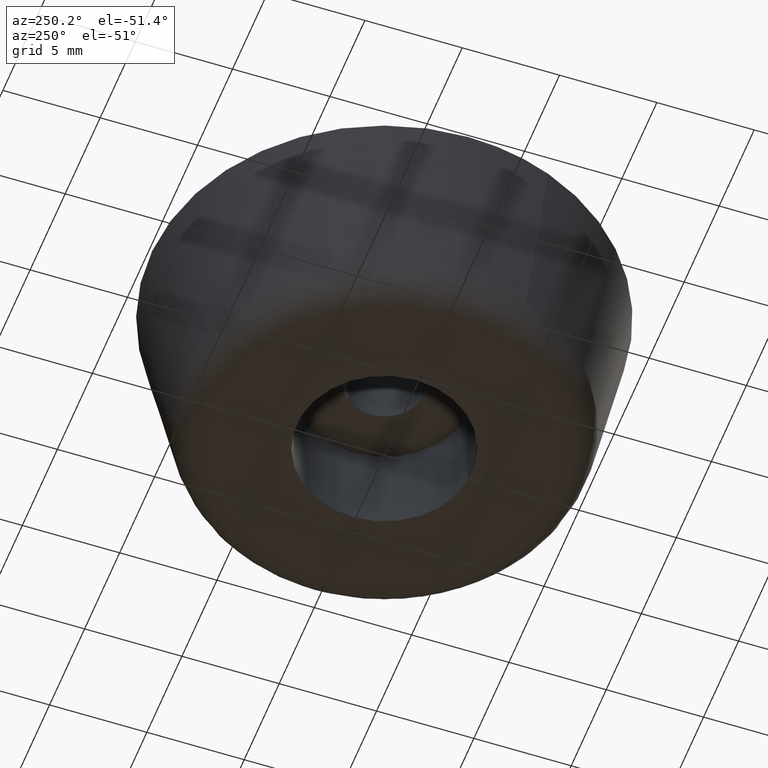
[diagram: clean part render]
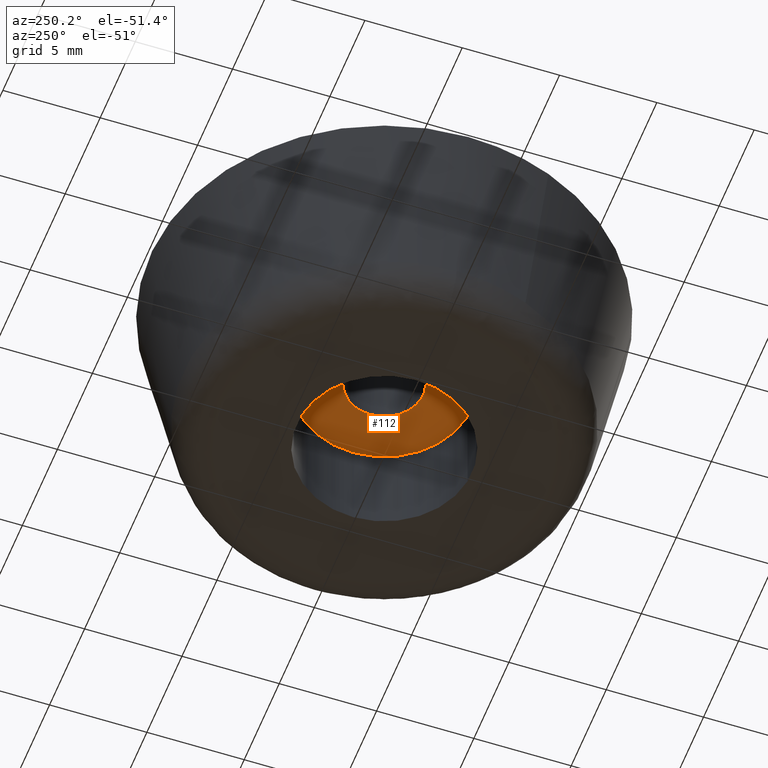
[diagram: same view with one face highlighted and labeled with its STEP entity id]
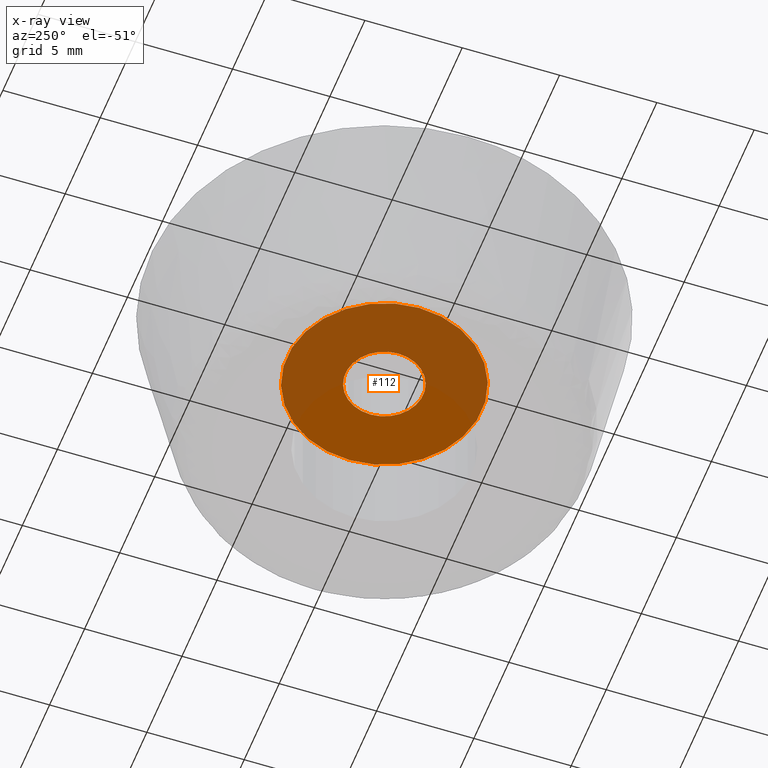
[diagram: x-ray of the same camera — body ghosted, the highlighted face saturated]
A machine part, auxiliary view. The second image highlights one B-rep face of the part: STEP entity #112.
The next image is the same camera in x-ray: the body ghosted, the highlighted face saturated — about 60% of this face is hidden behind the body in this view.
In plain terms, the highlighted planar face has unit normal (0, 0, 1).
Its self-contained STEP definition (entity closure, byte-faithful):
#112=ADVANCED_FACE('',(#133,#134),#132,.F.);
#132=PLANE('',#341);
#133=FACE_OUTER_BOUND('',#342,.T.);
#134=FACE_BOUND('',#343,.T.);
#338=CARTESIAN_POINT('',(-9.72948658446E+000,-7.57898896068E+000,5.00000000000E+000));
#339=DIRECTION('',(0.00000000000E+000,0.00000000000E+000,1.00000000000E+000));
#340=DIRECTION('',(1.00000000000E+000,0.00000000000E+000,0.00000000000E+000));
#341=AXIS2_PLACEMENT_3D('',#338,#339,#340);
#342=EDGE_LOOP('',(#498,#499));
#343=EDGE_LOOP('',(#500,#501));
#498=ORIENTED_EDGE('',*,*,#588,.T.);
#499=ORIENTED_EDGE('',*,*,#589,.T.);
#500=ORIENTED_EDGE('',*,*,#590,.F.);
#501=ORIENTED_EDGE('',*,*,#591,.F.);
#588=EDGE_CURVE('',#633,#634,#635,.T.);
#589=EDGE_CURVE('',#634,#633,#641,.T.);
#590=EDGE_CURVE('',#647,#648,#649,.T.);
#591=EDGE_CURVE('',#648,#647,#655,.T.);
#633=VERTEX_POINT('',#934);
#634=VERTEX_POINT('',#935);
#635=CIRCLE('',#939,5.00000000000E+000);
#641=CIRCLE('',#943,5.00000000000E+000);
#647=VERTEX_POINT('',#944);
#648=VERTEX_POINT('',#945);
#649=CIRCLE('',#949,2.00000000000E+000);
#655=CIRCLE('',#953,2.00000000000E+000);
#934=CARTESIAN_POINT('',(5.90171136897E-001,-4.96504763614E+000,5.00000000000E+000));
#935=CARTESIAN_POINT('',(-5.90171173285E-001,4.96504763182E+000,5.00000000000E+000));
#936=CARTESIAN_POINT('',(1.79722903226E-012,8.17568235334E-013,5.00000000000E+000));
#937=DIRECTION('',(4.57944793197E-013,6.78481120104E-014,-1.00000000000E+000));
#938=DIRECTION('',(1.18034227379E-001,-9.93009527229E-001,-1.33206617835E-014));
#939=AXIS2_PLACEMENT_3D('',#936,#937,#938);
#940=CARTESIAN_POINT('',(1.79722903226E-012,8.17568235334E-013,5.00000000000E+000));
#941=DIRECTION('',(4.57944793197E-013,6.78481120104E-014,-1.00000000000E+000));
#942=DIRECTION('',(1.18034227379E-001,-9.93009527229E-001,-1.33206617835E-014));
#943=AXIS2_PLACEMENT_3D('',#940,#941,#942);
#944=CARTESIAN_POINT('',(2.36411790210E-001,-1.98597821374E+000,5.00000000000E+000));
#945=CARTESIAN_POINT('',(-2.36411790210E-001,1.98597821374E+000,5.00000000000E+000));
#946=CARTESIAN_POINT('',(7.77156117238E-016,3.33066907388E-016,5.00000000000E+000));
#947=DIRECTION('',(-1.14111647718E-015,-2.37171597956E-015,-1.00000000000E+000));
#948=DIRECTION('',(-1.18205895105E-001,9.92989106870E-001,-2.22020143769E-015));
#949=AXIS2_PLACEMENT_3D('',#946,#947,#948);
#950=CARTESIAN_POINT('',(7.77156117238E-016,3.33066907388E-016,5.00000000000E+000));
#951=DIRECTION('',(-1.14111647718E-015,-2.37171597956E-015,-1.00000000000E+000));
#952=DIRECTION('',(-1.18205895105E-001,9.92989106870E-001,-2.22020143769E-015));
#953=AXIS2_PLACEMENT_3D('',#950,#951,#952);